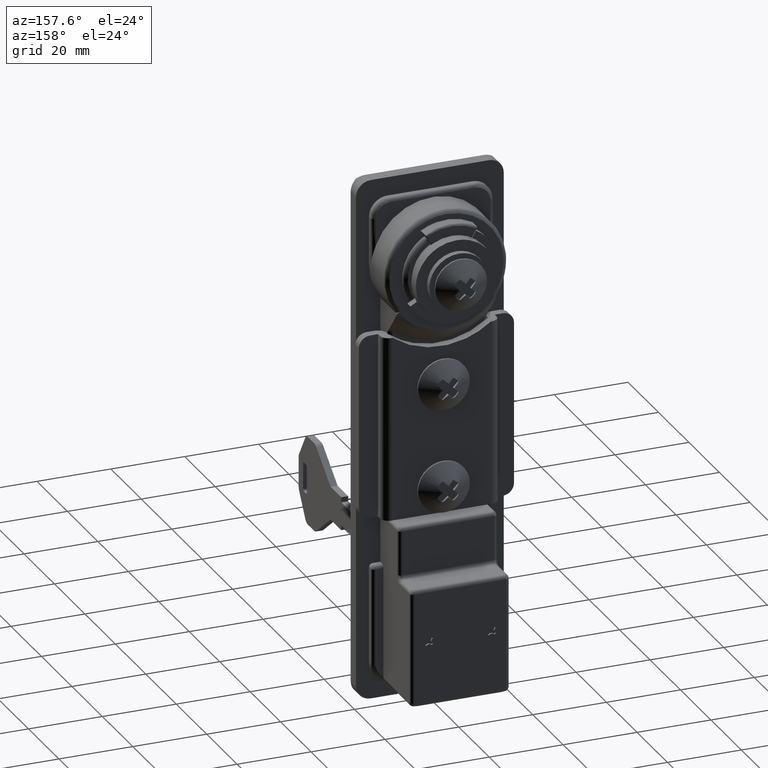
[diagram: clean part render]
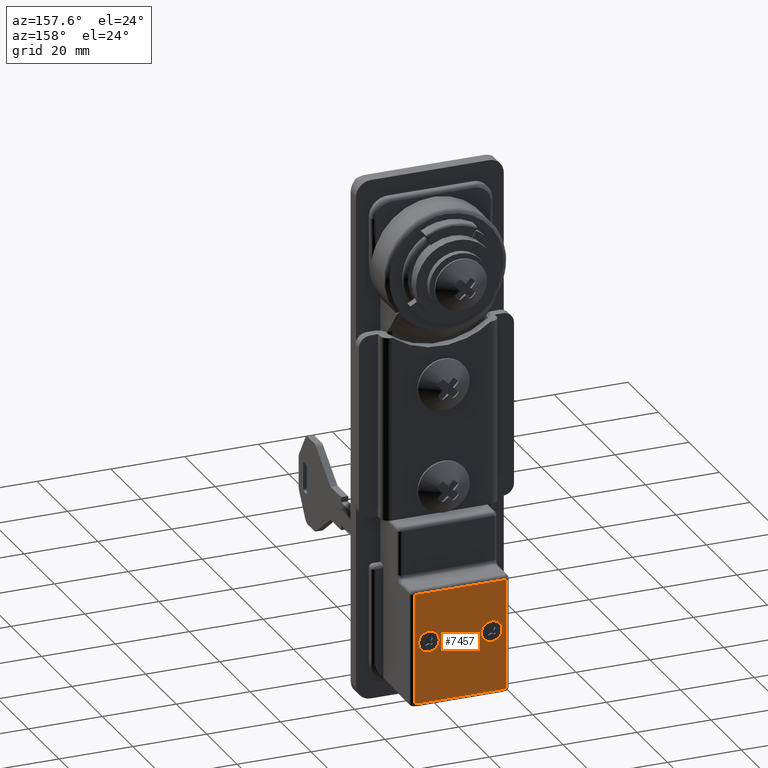
[diagram: same view with one face highlighted and labeled with its STEP entity id]
A machine part, auxiliary view. The second image highlights one B-rep face of the part: STEP entity #7457.
In plain terms, the highlighted face is a freeform B-spline surface patch.
Its self-contained STEP definition (entity closure, byte-faithful):
#2616=CARTESIAN_POINT('',(21.000000533101112,10.637937021394990,-94.691951259798543));
#2617=VERTEX_POINT('',#2616);
#2623=CARTESIAN_POINT('',(21.0,8.499979999999880,-93.700029999999998));
#2624=VERTEX_POINT('',#2623);
#2625=CARTESIAN_POINT('',(21.000000533101112,10.637937021394990,-94.691951259798543));
#2626=CARTESIAN_POINT('',(21.000000488241941,10.458033162200030,-94.479011465840713));
#2627=CARTESIAN_POINT('',(21.000000396900258,10.091714929067701,-94.158399040816619));
#2628=CARTESIAN_POINT('',(21.000000214795332,9.361398615272096,-93.795049450280587));
#2629=CARTESIAN_POINT('',(21.000000082152280,8.829444695773717,-93.699807118299290));
#2630=CARTESIAN_POINT('',(21.0,8.499979999999880,-93.700029999999998));
#2631=B_SPLINE_CURVE_WITH_KNOTS('',3,(#2625,#2626,#2627,#2628,#2629,#2630),.UNSPECIFIED.,.F.,.U.,(4,1,1,4),(0.000000115411530,0.836251335508521,1.444401416833641,2.432719932049156),.UNSPECIFIED.);
#2632=EDGE_CURVE('',#2617,#2624,#2631,.T.);
#2634=CARTESIAN_POINT('',(21.0,5.699980000003219,-96.500034324840755));
#2635=VERTEX_POINT('',#2634);
#2636=CARTESIAN_POINT('',(21.0,8.499979999999880,-93.700029999999998));
#2637=CARTESIAN_POINT('',(20.999999999999989,8.156329852389902,-93.699768622762917));
#2638=CARTESIAN_POINT('',(21.000000000000021,7.606758884692336,-93.802513277351338));
#2639=CARTESIAN_POINT('',(20.999999999999979,6.972591927164889,-94.131721865718347));
#2640=CARTESIAN_POINT('',(21.000000000000011,6.505865548653844,-94.505230091606151));
#2641=CARTESIAN_POINT('',(21.000000000000011,6.110493026384926,-94.986919951297182));
#2642=CARTESIAN_POINT('',(21.000000000000039,5.784870700727840,-95.675448210842589));
#2643=CARTESIAN_POINT('',(20.999999999999961,5.699803338873028,-96.202222092004774));
#2644=CARTESIAN_POINT('',(21.0,5.699980000003219,-96.500034324840755));
#2645=B_SPLINE_CURVE_WITH_KNOTS('',3,(#2636,#2637,#2638,#2639,#2640,#2641,#2642,#2643,#2644),.UNSPECIFIED.,.F.,.U.,(4,1,1,1,1,1,4),(0.000000399073292,1.030859051990707,1.649391872016258,2.130500888707163,2.817652341003678,3.504943343226494,4.398342521788631),.UNSPECIFIED.);
#2646=EDGE_CURVE('',#2624,#2635,#2645,.T.);
#2648=CARTESIAN_POINT('',(21.0,8.499979999999880,-99.300029999999992));
#2649=VERTEX_POINT('',#2648);
#2650=CARTESIAN_POINT('',(21.0,5.699980000003219,-96.500034324840755));
#2651=CARTESIAN_POINT('',(20.999999999999979,5.699752832812440,-96.843661161111243));
#2652=CARTESIAN_POINT('',(21.000000000000082,5.832223112112376,-97.553699094614430));
#2653=CARTESIAN_POINT('',(20.999999999999890,6.344257062797094,-98.362623859090945));
#2654=CARTESIAN_POINT('',(21.000000000000160,6.933419067797653,-98.845494255458860));
#2655=CARTESIAN_POINT('',(20.999999999999812,7.606840057418158,-99.195027962706860));
#2656=CARTESIAN_POINT('',(21.000000000000121,8.133372695179890,-99.300462419811979));
#2657=CARTESIAN_POINT('',(21.0,8.499979999999880,-99.300029999999992));
#2658=B_SPLINE_CURVE_WITH_KNOTS('',3,(#2650,#2651,#2652,#2653,#2654,#2655,#2656,#2657),.UNSPECIFIED.,.F.,.U.,(4,1,1,1,1,4),(0.000000404972816,1.030857914541862,2.130498537878096,2.817649214348442,3.298753384872762,4.398337646563469),.UNSPECIFIED.);
#2659=EDGE_CURVE('',#2635,#2649,#2658,.T.);
#2661=CARTESIAN_POINT('',(20.999999460135619,10.427371697083990,-98.531077064026903));
#2662=VERTEX_POINT('',#2661);
#2663=CARTESIAN_POINT('',(21.0,8.499979999999880,-99.300029999999992));
#2664=CARTESIAN_POINT('',(20.999999894541730,8.876480723400007,-99.300447000547834));
#2665=CARTESIAN_POINT('',(20.999999696174530,9.584679878205076,-99.154797559050138));
#2666=CARTESIAN_POINT('',(20.999999527580940,10.186582336300980,-98.759937879375215));
#2667=CARTESIAN_POINT('',(20.999999460135619,10.427371697083990,-98.531077064026903));
#2668=B_SPLINE_CURVE_WITH_KNOTS('',3,(#2663,#2664,#2665,#2666,#2667),.UNSPECIFIED.,.F.,.U.,(4,1,4),(0.000000103726193,1.129333107478747,2.125860262416486),.UNSPECIFIED.);
#2669=EDGE_CURVE('',#2649,#2662,#2668,.T.);
#2762=CARTESIAN_POINT('',(21.0,11.299979999996539,-96.500025675159264));
#2763=VERTEX_POINT('',#2762);
#2764=CARTESIAN_POINT('',(20.999999460135619,10.427371697083990,-98.531077064026903));
#2765=CARTESIAN_POINT('',(20.999999516405889,10.650760051071170,-98.319379213271375));
#2766=CARTESIAN_POINT('',(20.999999613155900,10.925168116327139,-97.955391771801686));
#2767=CARTESIAN_POINT('',(20.999999798691160,11.225031704537241,-97.257379007425158));
#2768=CARTESIAN_POINT('',(20.999999918193399,11.300202034186130,-96.807794557258617));
#2769=CARTESIAN_POINT('',(21.0,11.299979999996539,-96.500025675159264));
#2770=B_SPLINE_CURVE_WITH_KNOTS('',3,(#2764,#2765,#2766,#2767,#2768,#2769),.UNSPECIFIED.,.F.,.U.,(4,1,1,4),(0.000000111188356,0.923215043414780,1.349268308891728,2.272483241518852),.UNSPECIFIED.);
#2771=EDGE_CURVE('',#2662,#2763,#2770,.T.);
#2773=CARTESIAN_POINT('',(21.0,11.299979999996539,-96.500025675159264));
#2774=CARTESIAN_POINT('',(21.000000108680769,11.300369832612059,-96.131421943777440));
#2775=CARTESIAN_POINT('',(21.000000301756220,11.168626429075539,-95.476584198875244));
#2776=CARTESIAN_POINT('',(21.000000468586169,10.823127631562340,-94.910760903617586));
#2777=CARTESIAN_POINT('',(21.000000533101112,10.637937021394990,-94.691951259798543));
#2778=B_SPLINE_CURVE_WITH_KNOTS('',3,(#2773,#2774,#2775,#2776,#2777),.UNSPECIFIED.,.F.,.U.,(4,1,4),(0.000000089558434,1.105641167398260,1.965620813818061),.UNSPECIFIED.);
#2779=EDGE_CURVE('',#2763,#2617,#2778,.T.);
#2941=CARTESIAN_POINT('',(20.999999459594360,-10.506601560379501,-98.452838448007014));
#2942=VERTEX_POINT('',#2941);
#2948=CARTESIAN_POINT('',(21.0,-8.499979999999880,-99.300029999999992));
#2949=VERTEX_POINT('',#2948);
#2950=CARTESIAN_POINT('',(21.0,-8.499979999999880,-99.300029999999992));
#2951=CARTESIAN_POINT('',(20.999999905848409,-8.849581511002173,-99.300335902438178));
#2952=CARTESIAN_POINT('',(20.999999705077339,-9.595079889205492,-99.158529574238088));
#2953=CARTESIAN_POINT('',(20.999999533924019,-10.230602398747431,-98.737137605898596));
#2954=CARTESIAN_POINT('',(20.999999459594360,-10.506601560379501,-98.452838448007014));
#2955=B_SPLINE_CURVE_WITH_KNOTS('',3,(#2950,#2951,#2952,#2953,#2954),.UNSPECIFIED.,.F.,.U.,(4,1,4),(0.000000102713645,1.048725151295469,2.237225117973957),.UNSPECIFIED.);
#2956=EDGE_CURVE('',#2949,#2942,#2955,.T.);
#2958=CARTESIAN_POINT('',(21.000000538547638,-6.435602265758430,-98.391683672840543));
#2959=VERTEX_POINT('',#2958);
#2960=CARTESIAN_POINT('',(21.000000538547638,-6.435602265758430,-98.391683672840543));
#2961=CARTESIAN_POINT('',(21.000000466202060,-6.712919744936394,-98.695224460560226));
#2962=CARTESIAN_POINT('',(21.000000296409830,-7.363772540819053,-99.147522415071322));
#2963=CARTESIAN_POINT('',(21.000000094635048,-8.137222065349885,-99.300356708002127));
#2964=CARTESIAN_POINT('',(21.0,-8.499979999999880,-99.300029999999992));
#2965=B_SPLINE_CURVE_WITH_KNOTS('',3,(#2960,#2961,#2962,#2963,#2964),.UNSPECIFIED.,.F.,.U.,(4,1,4),(0.000000123408264,1.233190280116140,2.321353474928045),.UNSPECIFIED.);
#2966=EDGE_CURVE('',#2959,#2949,#2965,.T.);
#3067=CARTESIAN_POINT('',(21.0,-5.699980000003219,-96.500034324840755));
#3068=VERTEX_POINT('',#3067);
#3069=CARTESIAN_POINT('',(21.0,-5.699980000003219,-96.500034324840755));
#3070=CARTESIAN_POINT('',(21.000000104726070,-5.699567648089761,-96.867885178516843));
#3071=CARTESIAN_POINT('',(21.000000301715410,-5.838552345219756,-97.559810380154346));
#3072=CARTESIAN_POINT('',(21.000000470469718,-6.216146323934969,-98.152560040401880));
#3073=CARTESIAN_POINT('',(21.000000538547638,-6.435602265758430,-98.391683672840543));
#3074=B_SPLINE_CURVE_WITH_KNOTS('',3,(#3069,#3070,#3071,#3072,#3073),.UNSPECIFIED.,.F.,.U.,(4,1,4),(0.000000092502148,1.103369914678665,2.076984573370471),.UNSPECIFIED.);
#3075=EDGE_CURVE('',#3068,#2959,#3074,.T.);
#3077=CARTESIAN_POINT('',(21.0,-8.499979999999880,-93.700029999999998));
#3078=VERTEX_POINT('',#3077);
#3079=CARTESIAN_POINT('',(21.0,-8.499979999999880,-93.700029999999998));
#3080=CARTESIAN_POINT('',(20.999999999999989,-8.156329852389902,-93.699768622762917));
#3081=CARTESIAN_POINT('',(21.000000000000021,-7.606758884692336,-93.802513277351338));
#3082=CARTESIAN_POINT('',(20.999999999999979,-6.972591927164889,-94.131721865718347));
#3083=CARTESIAN_POINT('',(21.000000000000011,-6.505865548653844,-94.505230091606151));
#3084=CARTESIAN_POINT('',(21.000000000000011,-6.110493026384926,-94.986919951297182));
#3085=CARTESIAN_POINT('',(21.000000000000039,-5.784870700727840,-95.675448210842589));
#3086=CARTESIAN_POINT('',(20.999999999999961,-5.699803338873028,-96.202222092004774));
#3087=CARTESIAN_POINT('',(21.0,-5.699980000003219,-96.500034324840755));
#3088=B_SPLINE_CURVE_WITH_KNOTS('',3,(#3079,#3080,#3081,#3082,#3083,#3084,#3085,#3086,#3087),.UNSPECIFIED.,.F.,.U.,(4,1,1,1,1,1,4),(0.000000399073292,1.030859051990707,1.649391872016258,2.130500888707163,2.817652341003678,3.504943343226494,4.398342521788631),.UNSPECIFIED.);
#3089=EDGE_CURVE('',#3078,#3068,#3088,.T.);
#3091=CARTESIAN_POINT('',(21.0,-11.299979999996539,-96.500025675159264));
#3092=VERTEX_POINT('',#3091);
#3093=CARTESIAN_POINT('',(21.0,-11.299979999996539,-96.500025675159264));
#3094=CARTESIAN_POINT('',(21.000000000000021,-11.300738066484049,-96.064659467452955));
#3095=CARTESIAN_POINT('',(20.999999999999961,-11.120049431735691,-95.309403108401909));
#3096=CARTESIAN_POINT('',(21.000000000000039,-10.552156942533401,-94.543944508339550));
#3097=CARTESIAN_POINT('',(20.999999999999989,-9.989496823291260,-94.105050032659392));
#3098=CARTESIAN_POINT('',(20.999999999999989,-9.347424952579814,-93.791597288921835));
#3099=CARTESIAN_POINT('',(21.000000000000011,-8.820723332379323,-93.699793271545275));
#3100=CARTESIAN_POINT('',(21.0,-8.499979999999880,-93.700029999999998));
#3101=B_SPLINE_CURVE_WITH_KNOTS('',3,(#3093,#3094,#3095,#3096,#3097,#3098,#3099,#3100),.UNSPECIFIED.,.F.,.U.,(4,1,1,1,1,4),(0.000000404976702,1.305773698718072,2.267835558059581,2.817649214349137,3.436204036733561,4.398337646563491),.UNSPECIFIED.);
#3102=EDGE_CURVE('',#3092,#3078,#3101,.T.);
#3104=CARTESIAN_POINT('',(20.999999459594360,-10.506601560379501,-98.452838448007014));
#3105=CARTESIAN_POINT('',(20.999999504231340,-10.663627023735870,-98.291537895234242));
#3106=CARTESIAN_POINT('',(20.999999614033118,-10.966021206341900,-97.894757306669959));
#3107=CARTESIAN_POINT('',(20.999999800649960,-11.240024959196100,-97.220397779493140));
#3108=CARTESIAN_POINT('',(20.999999937705319,-11.300008588521431,-96.725133909314323));
#3109=CARTESIAN_POINT('',(21.0,-11.299979999996539,-96.500025675159264));
#3110=B_SPLINE_CURVE_WITH_KNOTS('',3,(#3104,#3105,#3106,#3107,#3108,#3109),.UNSPECIFIED.,.F.,.U.,(4,1,1,4),(0.000000112727446,0.675353375998678,1.485764852529595,2.161118116046867),.UNSPECIFIED.);
#3111=EDGE_CURVE('',#2942,#3092,#3110,.T.);
#6309=CARTESIAN_POINT('',(21.0,-12.400000000000119,-112.897760435504790));
#6310=VERTEX_POINT('',#6309);
#6354=CARTESIAN_POINT('',(21.0,-11.499980000000001,-113.000330000000010));
#6355=VERTEX_POINT('',#6354);
#6366=CARTESIAN_POINT('',(21.0,-12.400000000000119,-112.897760435504790));
#6367=CARTESIAN_POINT('',(21.0,-12.105168225706331,-112.965870945722700));
#6368=CARTESIAN_POINT('',(21.000000000000011,-11.802585493081819,-113.000377869629500));
#6369=CARTESIAN_POINT('',(21.0,-11.499980000000001,-113.000330000000010));
#6370=B_SPLINE_CURVE_WITH_KNOTS('',3,(#6366,#6367,#6368,#6369),.UNSPECIFIED.,.F.,.U.,(4,4),(9.186740E-009,0.907823099398421),.UNSPECIFIED.);
#6371=EDGE_CURVE('',#6310,#6355,#6370,.T.);
#6398=CARTESIAN_POINT('',(21.0,-12.400000000000141,-83.000030000000010));
#6399=VERTEX_POINT('',#6398);
#6418=CARTESIAN_POINT('',(21.0,-12.400000000000141,-83.000030000000010));
#6419=CARTESIAN_POINT('',(21.0,-12.400000000000119,-112.897760435504790));
#6420=QUASI_UNIFORM_CURVE('',1,(#6418,#6419),.UNSPECIFIED.,.F.,.U.);
#6421=EDGE_CURVE('',#6399,#6310,#6420,.T.);
#6442=CARTESIAN_POINT('',(21.0,11.499969999999999,-113.000330000000010));
#6443=VERTEX_POINT('',#6442);
#6454=CARTESIAN_POINT('',(21.0,-11.499980000000001,-113.000330000000010));
#6455=CARTESIAN_POINT('',(21.0,11.499969999999999,-113.000330000000010));
#6456=QUASI_UNIFORM_CURVE('',1,(#6454,#6455),.UNSPECIFIED.,.F.,.U.);
#6457=EDGE_CURVE('',#6355,#6443,#6456,.T.);
#6537=CARTESIAN_POINT('',(21.0,12.400000000000199,-112.897758126226190));
#6538=VERTEX_POINT('',#6537);
#6549=CARTESIAN_POINT('',(21.0,11.499969999999999,-113.000330000000010));
#6550=CARTESIAN_POINT('',(20.999999999999989,11.802561129387829,-113.000388727651500));
#6551=CARTESIAN_POINT('',(21.000000000000011,12.105171374404669,-112.965866532500600));
#6552=CARTESIAN_POINT('',(21.0,12.400000000000199,-112.897758126226190));
#6553=B_SPLINE_CURVE_WITH_KNOTS('',3,(#6549,#6550,#6551,#6552),.UNSPECIFIED.,.F.,.U.,(4,4),(9.187251E-009,0.907833363605597),.UNSPECIFIED.);
#6554=EDGE_CURVE('',#6443,#6538,#6553,.T.);
#6581=CARTESIAN_POINT('',(21.0,12.400000000000199,-83.000030000000010));
#6582=VERTEX_POINT('',#6581);
#6601=CARTESIAN_POINT('',(21.0,12.400000000000199,-83.000030000000010));
#6602=CARTESIAN_POINT('',(21.0,-12.400000000000141,-83.000030000000010));
#6603=QUASI_UNIFORM_CURVE('',1,(#6601,#6602),.UNSPECIFIED.,.F.,.U.);
#6604=EDGE_CURVE('',#6582,#6399,#6603,.T.);
#6788=CARTESIAN_POINT('',(21.0,12.400000000000199,-112.897758126226190));
#6789=CARTESIAN_POINT('',(21.0,12.400000000000199,-83.000030000000010));
#6790=QUASI_UNIFORM_CURVE('',1,(#6788,#6789),.UNSPECIFIED.,.F.,.U.);
#6791=EDGE_CURVE('',#6538,#6582,#6790,.T.);
#7428=CARTESIAN_POINT('',(21.0,-13.638759630525270,-81.501515743571275));
#7429=CARTESIAN_POINT('',(21.0,-13.638759630525270,-114.498843451758010));
#7430=CARTESIAN_POINT('',(21.0,13.638758743608211,-81.501515743571275));
#7431=CARTESIAN_POINT('',(21.0,13.638758743608211,-114.498843451758010));
#7432=B_SPLINE_SURFACE_WITH_KNOTS('',1,1,((#7428,#7430),(#7429,#7431)),.UNSPECIFIED.,.F.,.F.,.U.,(2,2),(2,2),(0.0,32.997327708186717),(0.0,27.277518374133479),.UNSPECIFIED.);
#7433=ORIENTED_EDGE('',*,*,#6791,.T.);
#7434=ORIENTED_EDGE('',*,*,#6604,.T.);
#7435=ORIENTED_EDGE('',*,*,#6421,.T.);
#7436=ORIENTED_EDGE('',*,*,#6371,.T.);
#7437=ORIENTED_EDGE('',*,*,#6457,.T.);
#7438=ORIENTED_EDGE('',*,*,#6554,.T.);
#7439=EDGE_LOOP('',(#7433,#7434,#7435,#7436,#7437,#7438));
#7440=FACE_OUTER_BOUND('',#7439,.T.);
#7441=ORIENTED_EDGE('',*,*,#3089,.T.);
#7442=ORIENTED_EDGE('',*,*,#3075,.T.);
#7443=ORIENTED_EDGE('',*,*,#2966,.T.);
#7444=ORIENTED_EDGE('',*,*,#2956,.T.);
#7445=ORIENTED_EDGE('',*,*,#3111,.T.);
#7446=ORIENTED_EDGE('',*,*,#3102,.T.);
#7447=EDGE_LOOP('',(#7441,#7442,#7443,#7444,#7445,#7446));
#7448=FACE_BOUND('',#7447,.T.);
#7449=ORIENTED_EDGE('',*,*,#2646,.F.);
#7450=ORIENTED_EDGE('',*,*,#2632,.F.);
#7451=ORIENTED_EDGE('',*,*,#2779,.F.);
#7452=ORIENTED_EDGE('',*,*,#2771,.F.);
#7453=ORIENTED_EDGE('',*,*,#2669,.F.);
#7454=ORIENTED_EDGE('',*,*,#2659,.F.);
#7455=EDGE_LOOP('',(#7449,#7450,#7451,#7452,#7453,#7454));
#7456=FACE_BOUND('',#7455,.T.);
#7457=ADVANCED_FACE('',(#7440,#7448,#7456),#7432,.T.);